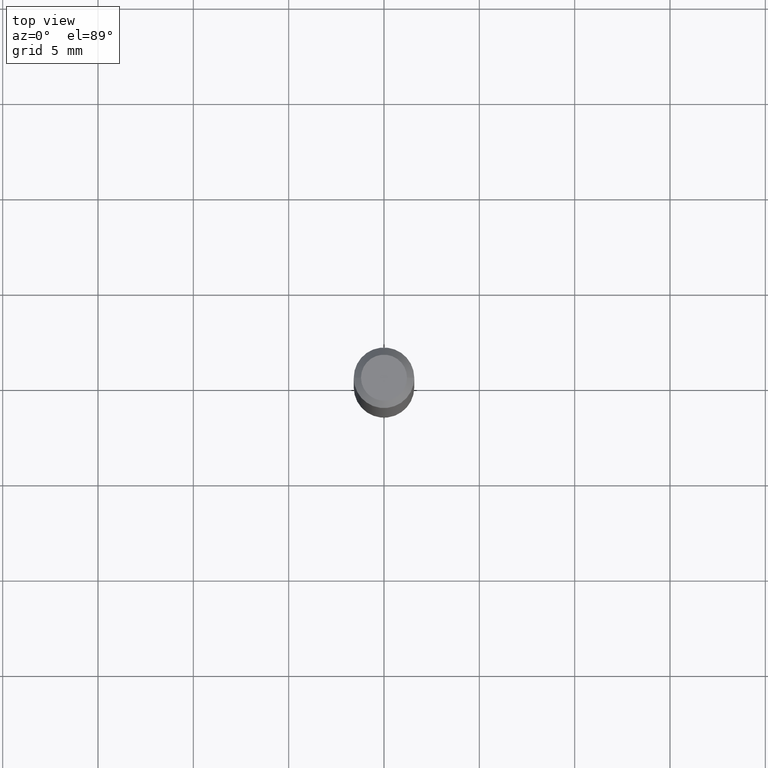
[diagram: clean part render]
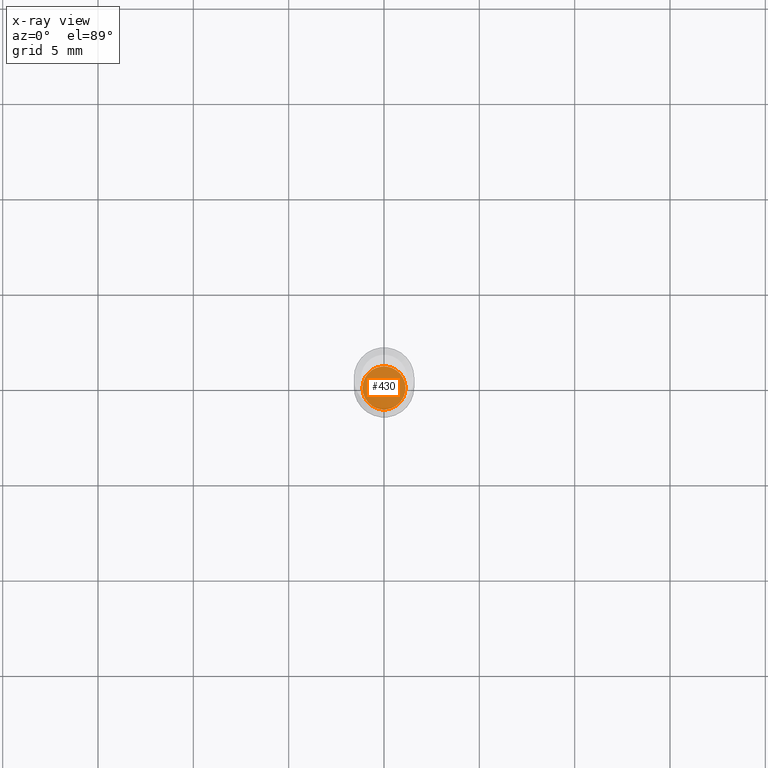
[diagram: x-ray — body ghosted, one internal face saturated and labeled with its STEP entity id]
A machine part, top view, then the same camera in x-ray: the body is ghosted and one INTERNAL B-rep face — a face not visible from any outside direction — is saturated and labeled: STEP entity #430.
In plain terms, the highlighted planar face has unit normal (-0, 0, 1).
Its self-contained STEP definition (entity closure, byte-faithful):
#15 = DIRECTION ( 'NONE',  ( -2.438088387897960049E-29, 3.491481338843145188E-15, 1.000000000000000000 ) ) ;
#16 = DIRECTION ( 'NONE',  ( 1.000000000000000000, -6.982962677686276177E-15, 0.000000000000000000 ) ) ;
#107 = CARTESIAN_POINT ( 'NONE',  ( 3.007926631607718216E-29, -4.294522046777069173E-15, -1.230000000000000204 ) ) ;
#142 = CARTESIAN_POINT ( 'NONE',  ( 3.007926631607718216E-29, -4.294522046777069173E-15, -1.230000000000000204 ) ) ;
#143 = VERTEX_POINT ( 'NONE', #147 ) ;
#147 = CARTESIAN_POINT ( 'NONE',  ( -0.04450000000000001177, -3.975681302189713503E-15, -1.230000000000000204 ) ) ;
#151 = AXIS2_PLACEMENT_3D ( 'NONE', #107, #260, #16 ) ;
#169 = DIRECTION ( 'NONE',  ( 1.000000000000000000, -6.982962677686276177E-15, 0.000000000000000000 ) ) ;
#179 = FACE_OUTER_BOUND ( 'NONE', #479, .T. ) ;
#194 = CIRCLE ( 'NONE', #151, 0.04450000000000001177 ) ;
#247 = VERTEX_POINT ( 'NONE', #367 ) ;
#260 = DIRECTION ( 'NONE',  ( -2.445468806185136597E-29, 3.491481338843145583E-15, 1.000000000000000000 ) ) ;
#282 = EDGE_CURVE ( 'NONE', #143, #247, #404, .T. ) ;
#340 = ORIENTED_EDGE ( 'NONE', *, *, #434, .F. ) ;
#342 = AXIS2_PLACEMENT_3D ( 'NONE', #408, #439, #169 ) ;
#367 = CARTESIAN_POINT ( 'NONE',  ( 0.04450000000000001177, -4.605263885934108641E-15, -1.230000000000000204 ) ) ;
#372 = PLANE ( 'NONE',  #456 ) ;
#404 = CIRCLE ( 'NONE', #342, 0.04450000000000001177 ) ;
#408 = CARTESIAN_POINT ( 'NONE',  ( 3.007926631607718216E-29, -4.294522046777069173E-15, -1.230000000000000204 ) ) ;
#413 = ORIENTED_EDGE ( 'NONE', *, *, #282, .F. ) ;
#430 = ADVANCED_FACE ( 'NONE', ( #179 ), #372, .F. ) ;
#434 = EDGE_CURVE ( 'NONE', #247, #143, #194, .T. ) ;
#439 = DIRECTION ( 'NONE',  ( -2.445468806185136597E-29, 3.491481338843145583E-15, 1.000000000000000000 ) ) ;
#456 = AXIS2_PLACEMENT_3D ( 'NONE', #142, #15, #498 ) ;
#479 = EDGE_LOOP ( 'NONE', ( #340, #413 ) ) ;
#498 = DIRECTION ( 'NONE',  ( 1.000000000000000000, -6.982962677686265922E-15, 4.876176775795935793E-29 ) ) ;